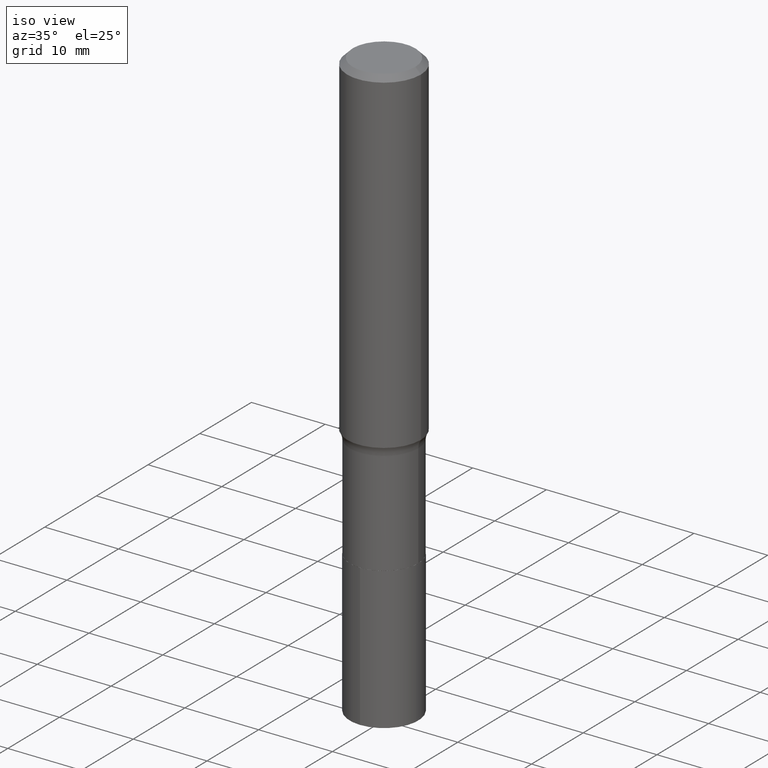
[diagram: clean part render]
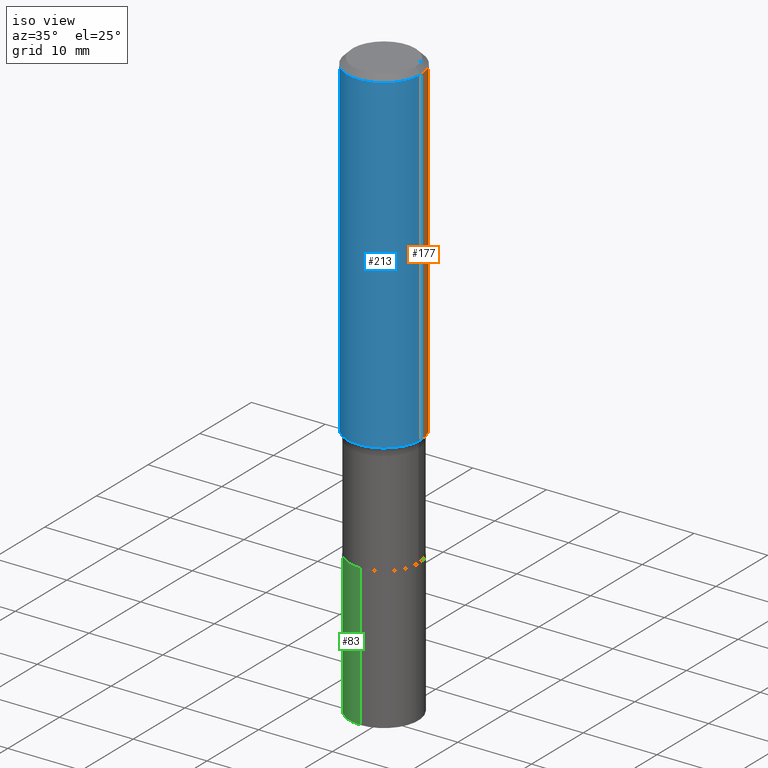
[diagram: same view with three faces highlighted in distinct colors, each labeled with its STEP entity id]
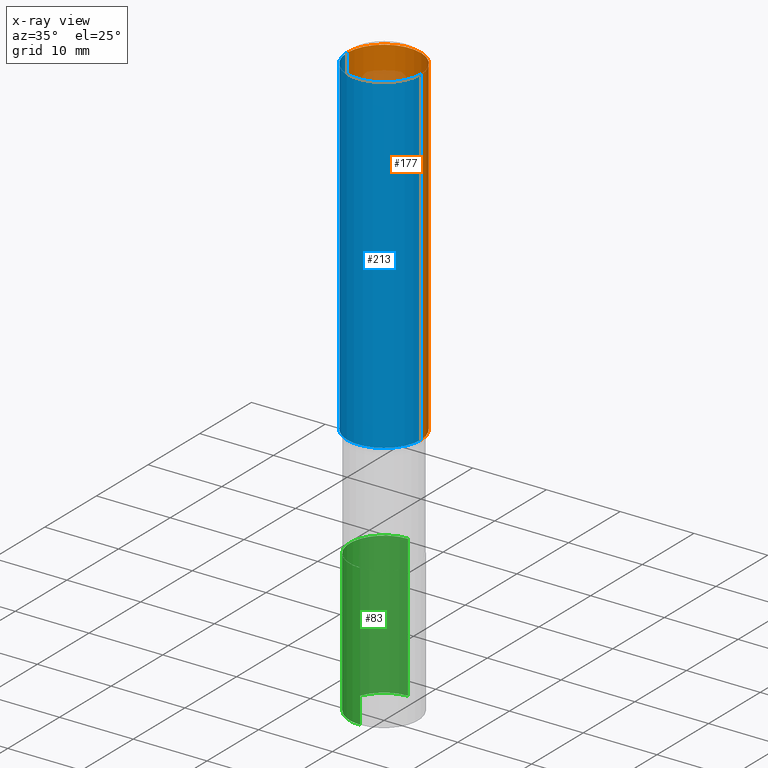
[diagram: x-ray of the same camera — body ghosted, the three highlighted faces saturated]
A machine part, iso view with three faces highlighted in distinct colors.
The next image is the same camera in x-ray (body ghosted, the three faces saturated) — at least one of them is partly hidden behind the body in this view.
Their STEP definitions:

[orange] entity #177 — the highlighted cylindrical surface (partial cylindrical patch) has radius 5 mm, axis along (-0, 0, 1).
#24 = VERTEX_POINT ( 'NONE', #133 ) ;
#43 = CARTESIAN_POINT ( 'NONE',  ( -0.1968500000000001082, 1.398703375343757985E-15, -9.682923725166787881E-30 ) ) ;
#52 = DIRECTION ( 'NONE',  ( -2.445468806185136597E-29, 3.491481338843145583E-15, 1.000000000000000000 ) ) ;
#55 = CARTESIAN_POINT ( 'NONE',  ( 7.220858017463203355E-31, -1.030947152326915746E-16, -0.02952750000000016820 ) ) ;
#65 = DIRECTION ( 'NONE',  ( 1.000000000000000000, -6.982962677686269866E-15, 0.000000000000000000 ) ) ;
#67 = ORIENTED_EDGE ( 'NONE', *, *, #276, .T. ) ;
#97 = VERTEX_POINT ( 'NONE', #465 ) ;
#109 = DIRECTION ( 'NONE',  ( 1.000000000000000000, -6.982962677686266711E-15, 4.876176775795935793E-29 ) ) ;
#113 = DIRECTION ( 'NONE',  ( -2.445468806185136877E-29, 3.491481338843145188E-15, 1.000000000000000000 ) ) ;
#120 = ORIENTED_EDGE ( 'NONE', *, *, #431, .T. ) ;
#133 = CARTESIAN_POINT ( 'NONE',  ( -0.1968500000000002470, -4.857272634184849180E-15, -1.791782742737339396 ) ) ;
#136 = ORIENTED_EDGE ( 'NONE', *, *, #349, .F. ) ;
#137 = FACE_OUTER_BOUND ( 'NONE', #439, .T. ) ;
#149 = LINE ( 'NONE', #43, #294 ) ;
#157 = EDGE_CURVE ( 'NONE', #359, #97, #245, .T. ) ;
#177 = ADVANCED_FACE ( 'NONE', ( #137 ), #355, .T. ) ;
#179 = CIRCLE ( 'NONE', #287, 0.1968500000000002470 ) ;
#191 = CARTESIAN_POINT ( 'NONE',  ( 0.1968500000000002470, -7.630572212631153309E-15, -1.791782742737339396 ) ) ;
#240 = AXIS2_PLACEMENT_3D ( 'NONE', #468, #320, #109 ) ;
#245 = LINE ( 'NONE', #388, #278 ) ;
#257 = CIRCLE ( 'NONE', #316, 0.1968500000000000250 ) ;
#267 = VERTEX_POINT ( 'NONE', #358 ) ;
#268 = CARTESIAN_POINT ( 'NONE',  ( 4.381748804825011085E-29, -6.255976009528609334E-15, -1.791782742737339396 ) ) ;
#276 = EDGE_CURVE ( 'NONE', #24, #267, #149, .T. ) ;
#278 = VECTOR ( 'NONE', #435, 39.37007874015748143 ) ;
#287 = AXIS2_PLACEMENT_3D ( 'NONE', #268, #335, #65 ) ;
#294 = VECTOR ( 'NONE', #113, 39.37007874015748143 ) ;
#316 = AXIS2_PLACEMENT_3D ( 'NONE', #55, #52, #400 ) ;
#320 = DIRECTION ( 'NONE',  ( -2.445468806185136597E-29, 3.491481338843145583E-15, 1.000000000000000000 ) ) ;
#335 = DIRECTION ( 'NONE',  ( -2.445468806185136597E-29, 3.491481338843145583E-15, 1.000000000000000000 ) ) ;
#349 = EDGE_CURVE ( 'NONE', #97, #267, #257, .T. ) ;
#355 = CYLINDRICAL_SURFACE ( 'NONE', #240, 0.1968500000000001082 ) ;
#358 = CARTESIAN_POINT ( 'NONE',  ( -0.1968500000000000250, -1.780831987036891933E-15, -0.02952750000000016820 ) ) ;
#359 = VERTEX_POINT ( 'NONE', #191 ) ;
#388 = CARTESIAN_POINT ( 'NONE',  ( 0.1968500000000001082, -1.374596203102542397E-15, 9.598753983154305062E-30 ) ) ;
#400 = DIRECTION ( 'NONE',  ( 1.000000000000000000, -6.982962677686265922E-15, 0.000000000000000000 ) ) ;
#419 = ORIENTED_EDGE ( 'NONE', *, *, #157, .F. ) ;
#431 = EDGE_CURVE ( 'NONE', #359, #24, #179, .T. ) ;
#435 = DIRECTION ( 'NONE',  ( -2.445468806185136877E-29, 3.491481338843145188E-15, 1.000000000000000000 ) ) ;
#439 = EDGE_LOOP ( 'NONE', ( #120, #67, #136, #419 ) ) ;
#465 = CARTESIAN_POINT ( 'NONE',  ( 0.1968500000000000250, -1.477690918335233294E-15, -0.02952750000000016820 ) ) ;
#468 = CARTESIAN_POINT ( 'NONE',  ( 0.000000000000000000, 0.000000000000000000, 0.000000000000000000 ) ) ;

[blue] entity #213 — the highlighted cylindrical surface (partial cylindrical patch) has radius 5 mm, axis along (-0, 0, 1).
#24 = VERTEX_POINT ( 'NONE', #133 ) ;
#42 = CYLINDRICAL_SURFACE ( 'NONE', #74, 0.1968500000000001082 ) ;
#43 = CARTESIAN_POINT ( 'NONE',  ( -0.1968500000000001082, 1.398703375343757985E-15, -9.682923725166787881E-30 ) ) ;
#68 = AXIS2_PLACEMENT_3D ( 'NONE', #144, #176, #247 ) ;
#74 = AXIS2_PLACEMENT_3D ( 'NONE', #323, #291, #325 ) ;
#97 = VERTEX_POINT ( 'NONE', #465 ) ;
#104 = DIRECTION ( 'NONE',  ( -2.445468806185136597E-29, 3.491481338843145583E-15, 1.000000000000000000 ) ) ;
#112 = EDGE_CURVE ( 'NONE', #24, #359, #436, .T. ) ;
#113 = DIRECTION ( 'NONE',  ( -2.445468806185136877E-29, 3.491481338843145188E-15, 1.000000000000000000 ) ) ;
#133 = CARTESIAN_POINT ( 'NONE',  ( -0.1968500000000002470, -4.857272634184849180E-15, -1.791782742737339396 ) ) ;
#144 = CARTESIAN_POINT ( 'NONE',  ( 7.220858017463203355E-31, -1.030947152326915746E-16, -0.02952750000000016820 ) ) ;
#146 = DIRECTION ( 'NONE',  ( 1.000000000000000000, -6.982962677686269866E-15, 0.000000000000000000 ) ) ;
#149 = LINE ( 'NONE', #43, #294 ) ;
#155 = CIRCLE ( 'NONE', #68, 0.1968500000000000250 ) ;
#157 = EDGE_CURVE ( 'NONE', #359, #97, #245, .T. ) ;
#165 = EDGE_CURVE ( 'NONE', #267, #97, #155, .T. ) ;
#176 = DIRECTION ( 'NONE',  ( -2.445468806185136597E-29, 3.491481338843145583E-15, 1.000000000000000000 ) ) ;
#191 = CARTESIAN_POINT ( 'NONE',  ( 0.1968500000000002470, -7.630572212631153309E-15, -1.791782742737339396 ) ) ;
#212 = FACE_OUTER_BOUND ( 'NONE', #420, .T. ) ;
#213 = ADVANCED_FACE ( 'NONE', ( #212 ), #42, .T. ) ;
#245 = LINE ( 'NONE', #388, #278 ) ;
#247 = DIRECTION ( 'NONE',  ( 1.000000000000000000, -6.982962677686265922E-15, 0.000000000000000000 ) ) ;
#267 = VERTEX_POINT ( 'NONE', #358 ) ;
#276 = EDGE_CURVE ( 'NONE', #24, #267, #149, .T. ) ;
#278 = VECTOR ( 'NONE', #435, 39.37007874015748143 ) ;
#286 = AXIS2_PLACEMENT_3D ( 'NONE', #350, #104, #146 ) ;
#291 = DIRECTION ( 'NONE',  ( -2.445468806185136597E-29, 3.491481338843145583E-15, 1.000000000000000000 ) ) ;
#294 = VECTOR ( 'NONE', #113, 39.37007874015748143 ) ;
#308 = ORIENTED_EDGE ( 'NONE', *, *, #112, .T. ) ;
#323 = CARTESIAN_POINT ( 'NONE',  ( 0.000000000000000000, 0.000000000000000000, 0.000000000000000000 ) ) ;
#325 = DIRECTION ( 'NONE',  ( 1.000000000000000000, -6.982962677686266711E-15, 4.876176775795935793E-29 ) ) ;
#328 = ORIENTED_EDGE ( 'NONE', *, *, #165, .F. ) ;
#350 = CARTESIAN_POINT ( 'NONE',  ( 4.381748804825011085E-29, -6.255976009528609334E-15, -1.791782742737339396 ) ) ;
#358 = CARTESIAN_POINT ( 'NONE',  ( -0.1968500000000000250, -1.780831987036891933E-15, -0.02952750000000016820 ) ) ;
#359 = VERTEX_POINT ( 'NONE', #191 ) ;
#366 = ORIENTED_EDGE ( 'NONE', *, *, #276, .F. ) ;
#388 = CARTESIAN_POINT ( 'NONE',  ( 0.1968500000000001082, -1.374596203102542397E-15, 9.598753983154305062E-30 ) ) ;
#420 = EDGE_LOOP ( 'NONE', ( #366, #308, #441, #328 ) ) ;
#435 = DIRECTION ( 'NONE',  ( -2.445468806185136877E-29, 3.491481338843145188E-15, 1.000000000000000000 ) ) ;
#436 = CIRCLE ( 'NONE', #286, 0.1968500000000002470 ) ;
#441 = ORIENTED_EDGE ( 'NONE', *, *, #157, .T. ) ;
#465 = CARTESIAN_POINT ( 'NONE',  ( 0.1968500000000000250, -1.477690918335233294E-15, -0.02952750000000016820 ) ) ;

[green] entity #83 — the highlighted cylindrical surface (partial cylindrical patch) has radius 4.6495 mm, axis along (-0, 0, 1).
#6 = VERTEX_POINT ( 'NONE', #300 ) ;
#11 = VECTOR ( 'NONE', #313, 39.37007874015748143 ) ;
#22 = EDGE_LOOP ( 'NONE', ( #405, #331, #150, #219 ) ) ;
#36 = CYLINDRICAL_SURFACE ( 'NONE', #354, 0.1830499999999999905 ) ;
#50 = EDGE_CURVE ( 'NONE', #6, #194, #417, .T. ) ;
#53 = VERTEX_POINT ( 'NONE', #310 ) ;
#78 = LINE ( 'NONE', #296, #384 ) ;
#83 = ADVANCED_FACE ( 'NONE', ( #180 ), #36, .T. ) ;
#98 = AXIS2_PLACEMENT_3D ( 'NONE', #440, #193, #223 ) ;
#150 = ORIENTED_EDGE ( 'NONE', *, *, #182, .T. ) ;
#180 = FACE_OUTER_BOUND ( 'NONE', #22, .T. ) ;
#182 = EDGE_CURVE ( 'NONE', #194, #53, #285, .T. ) ;
#193 = DIRECTION ( 'NONE',  ( -2.446021969847448891E-29, 3.490689176994593856E-15, 1.000000000000000000 ) ) ;
#194 = VERTEX_POINT ( 'NONE', #382 ) ;
#205 = DIRECTION ( 'NONE',  ( -2.446021969847448891E-29, 3.490689176994593856E-15, 1.000000000000000000 ) ) ;
#215 = VERTEX_POINT ( 'NONE', #363 ) ;
#219 = ORIENTED_EDGE ( 'NONE', *, *, #226, .F. ) ;
#223 = DIRECTION ( 'NONE',  ( -6.982962677686264344E-15, -1.000000000000000000, 2.984810700534567995E-15 ) ) ;
#226 = EDGE_CURVE ( 'NONE', #215, #53, #444, .T. ) ;
#250 = CARTESIAN_POINT ( 'NONE',  ( -1.278231318150412291E-15, -0.1830500000000083449, -2.391599999999999504 ) ) ;
#270 = AXIS2_PLACEMENT_3D ( 'NONE', #273, #378, #347 ) ;
#273 = CARTESIAN_POINT ( 'NONE',  ( 7.702667850016740557E-29, -1.099616916613917186E-14, -3.149600000000000843 ) ) ;
#277 = DIRECTION ( 'NONE',  ( -6.982962677686264344E-15, -1.000000000000000000, 2.984810700534567995E-15 ) ) ;
#285 = LINE ( 'NONE', #250, #11 ) ;
#296 = CARTESIAN_POINT ( 'NONE',  ( 1.300648477808921501E-15, 0.1830499999999916083, -2.391600000000000836 ) ) ;
#300 = CARTESIAN_POINT ( 'NONE',  ( 1.300648477808930770E-15, 0.1830499999999889715, -3.149600000000001288 ) ) ;
#310 = CARTESIAN_POINT ( 'NONE',  ( -1.278231318150412291E-15, -0.1830500000000083449, -2.391599999999999504 ) ) ;
#313 = DIRECTION ( 'NONE',  ( -2.446021969847448891E-29, 3.490689176994594250E-15, 1.000000000000000000 ) ) ;
#314 = CARTESIAN_POINT ( 'NONE',  ( 5.848583196872372803E-29, -8.350226769977267192E-15, -2.391600000000000392 ) ) ;
#331 = ORIENTED_EDGE ( 'NONE', *, *, #50, .T. ) ;
#347 = DIRECTION ( 'NONE',  ( -6.982962677686264344E-15, -1.000000000000000000, 2.984810700534567995E-15 ) ) ;
#354 = AXIS2_PLACEMENT_3D ( 'NONE', #314, #205, #277 ) ;
#363 = CARTESIAN_POINT ( 'NONE',  ( 1.300648477808940237E-15, 0.1830499999999916083, -2.391600000000000836 ) ) ;
#370 = EDGE_CURVE ( 'NONE', #6, #215, #78, .T. ) ;
#378 = DIRECTION ( 'NONE',  ( -2.446021969847448891E-29, 3.490689176994593856E-15, 1.000000000000000000 ) ) ;
#382 = CARTESIAN_POINT ( 'NONE',  ( -1.278231318150393753E-15, -0.1830500000000109817, -3.149600000000000399 ) ) ;
#384 = VECTOR ( 'NONE', #447, 39.37007874015748143 ) ;
#405 = ORIENTED_EDGE ( 'NONE', *, *, #370, .F. ) ;
#417 = CIRCLE ( 'NONE', #270, 0.1830499999999999905 ) ;
#440 = CARTESIAN_POINT ( 'NONE',  ( 5.848583196872372803E-29, -8.350226769977267192E-15, -2.391600000000000392 ) ) ;
#444 = CIRCLE ( 'NONE', #98, 0.1830499999999999905 ) ;
#447 = DIRECTION ( 'NONE',  ( -2.446021969847448891E-29, 3.490689176994594250E-15, 1.000000000000000000 ) ) ;